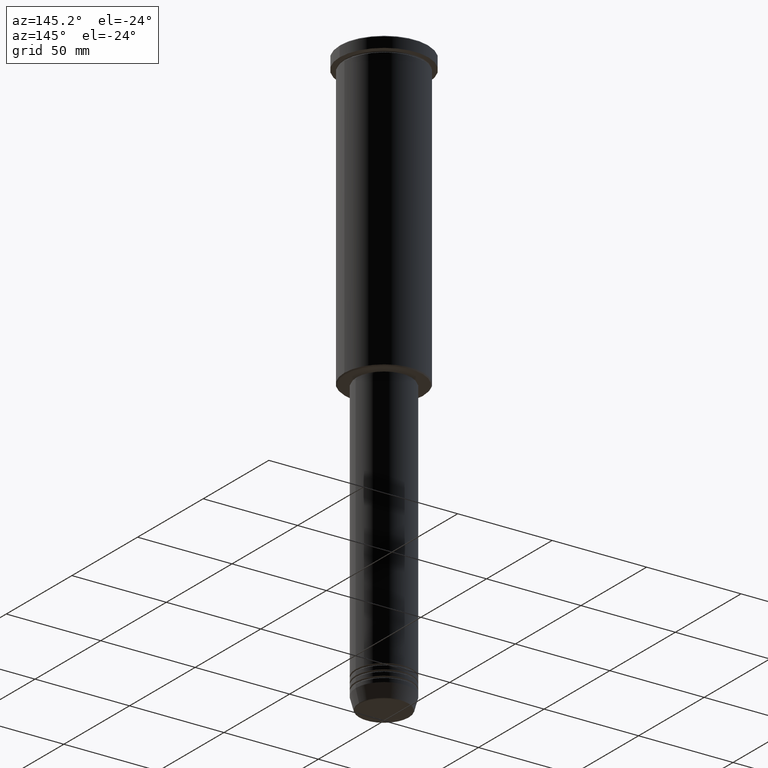
[diagram: clean part render]
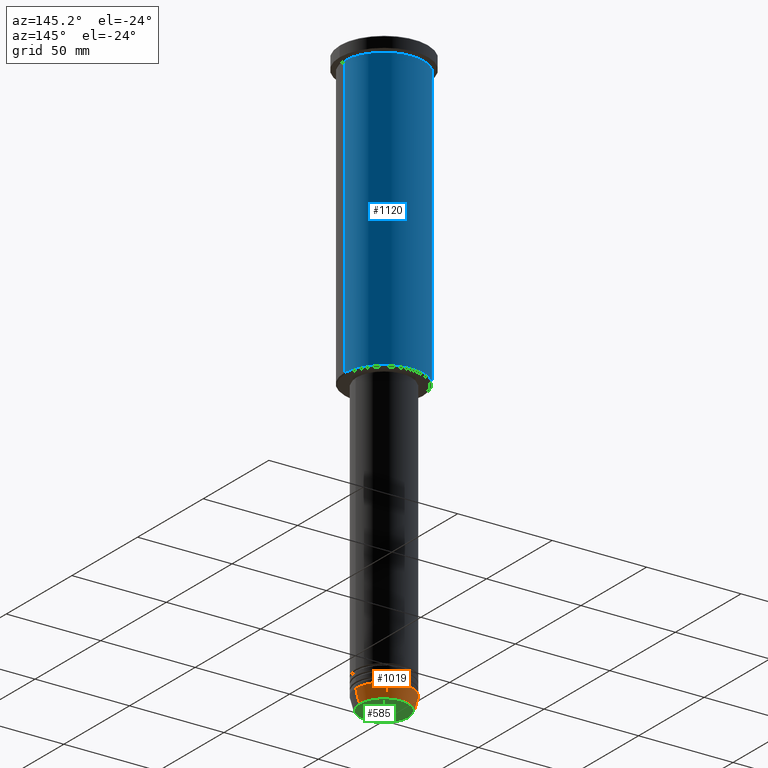
[diagram: same view with three faces highlighted in distinct colors, each labeled with its STEP entity id]
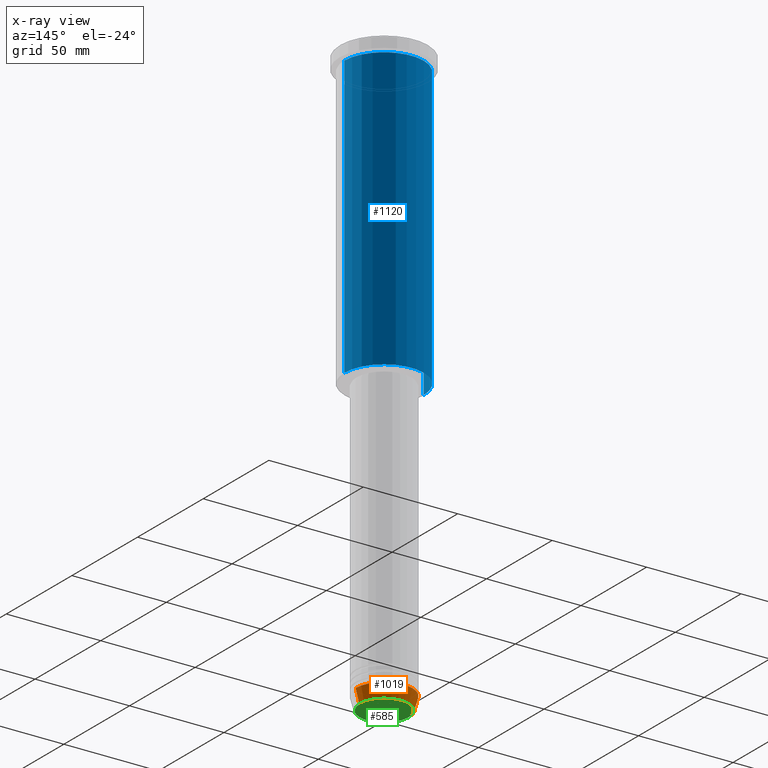
[diagram: x-ray of the same camera — body ghosted, the three highlighted faces saturated]
A machine part, auxiliary view with three faces highlighted in distinct colors.
The next image is the same camera in x-ray (body ghosted, the three faces saturated) — at least one of them is partly hidden behind the body in this view.
Their STEP definitions:

[orange] entity #1019 — the highlighted conical surface has half-angle 15 deg.
#1 = CARTESIAN_POINT ( 'NONE',  ( 15.00000000000000000, 0.000000000000000000, -304.0000000000000000 ) ) ;
#44 = CARTESIAN_POINT ( 'NONE',  ( -15.00000000000000000, 1.836970198721029589E-15, -304.0000000000000000 ) ) ;
#78 = CARTESIAN_POINT ( 'NONE',  ( 15.00000000000000000, 0.000000000000000000, -304.0000000000000000 ) ) ;
#81 = VERTEX_POINT ( 'NONE', #78 ) ;
#120 = CARTESIAN_POINT ( 'NONE',  ( 13.22365507213718772, 0.000000000000000000, -310.6294095225513274 ) ) ;
#149 = ORIENTED_EDGE ( 'NONE', *, *, #332, .T. ) ;
#182 = AXIS2_PLACEMENT_3D ( 'NONE', #543, #1004, #461 ) ;
#332 = EDGE_CURVE ( 'NONE', #344, #482, #380, .T. ) ;
#344 = VERTEX_POINT ( 'NONE', #120 ) ;
#380 = CIRCLE ( 'NONE', #1115, 13.22365507213718772 ) ;
#385 = ORIENTED_EDGE ( 'NONE', *, *, #703, .F. ) ;
#446 = DIRECTION ( 'NONE',  ( -0.000000000000000000, -0.000000000000000000, 1.000000000000000000 ) ) ;
#454 = VECTOR ( 'NONE', #803, 1000.000000000000000 ) ;
#461 = DIRECTION ( 'NONE',  ( 1.000000000000000000, 0.000000000000000000, 0.000000000000000000 ) ) ;
#462 = LINE ( 'NONE', #1, #454 ) ;
#467 = DIRECTION ( 'NONE',  ( 1.000000000000000000, 0.000000000000000000, 0.000000000000000000 ) ) ;
#482 = VERTEX_POINT ( 'NONE', #943 ) ;
#508 = VECTOR ( 'NONE', #964, 1000.000000000000000 ) ;
#542 = ORIENTED_EDGE ( 'NONE', *, *, #956, .F. ) ;
#543 = CARTESIAN_POINT ( 'NONE',  ( 0.000000000000000000, 0.000000000000000000, -304.0000000000000000 ) ) ;
#597 = EDGE_LOOP ( 'NONE', ( #149, #798, #542, #385 ) ) ;
#607 = AXIS2_PLACEMENT_3D ( 'NONE', #914, #446, #467 ) ;
#672 = DIRECTION ( 'NONE',  ( -0.000000000000000000, -0.000000000000000000, 1.000000000000000000 ) ) ;
#695 = CIRCLE ( 'NONE', #182, 15.00000000000000000 ) ;
#698 = LINE ( 'NONE', #44, #508 ) ;
#703 = EDGE_CURVE ( 'NONE', #344, #81, #462, .T. ) ;
#712 = VERTEX_POINT ( 'NONE', #1080 ) ;
#720 = FACE_OUTER_BOUND ( 'NONE', #597, .T. ) ;
#798 = ORIENTED_EDGE ( 'NONE', *, *, #832, .T. ) ;
#803 = DIRECTION ( 'NONE',  ( 0.2588190451025213501, 0.000000000000000000, 0.9659258262890680902 ) ) ;
#832 = EDGE_CURVE ( 'NONE', #482, #712, #698, .T. ) ;
#908 = CONICAL_SURFACE ( 'NONE', #607, 15.00000000000000000, 0.2617993877991500740 ) ;
#914 = CARTESIAN_POINT ( 'NONE',  ( 0.000000000000000000, 0.000000000000000000, -304.0000000000000000 ) ) ;
#925 = CARTESIAN_POINT ( 'NONE',  ( 0.000000000000000000, 0.000000000000000000, -310.6294095225513274 ) ) ;
#932 = DIRECTION ( 'NONE',  ( 1.000000000000000000, 0.000000000000000000, 0.000000000000000000 ) ) ;
#943 = CARTESIAN_POINT ( 'NONE',  ( -13.22365507213718772, 1.728200442216588386E-15, -310.6294095225513274 ) ) ;
#956 = EDGE_CURVE ( 'NONE', #81, #712, #695, .T. ) ;
#964 = DIRECTION ( 'NONE',  ( -0.2588190451025213501, 3.169619151431772337E-17, 0.9659258262890680902 ) ) ;
#1004 = DIRECTION ( 'NONE',  ( -0.000000000000000000, -0.000000000000000000, 1.000000000000000000 ) ) ;
#1019 = ADVANCED_FACE ( 'NONE', ( #720 ), #908, .T. ) ;
#1080 = CARTESIAN_POINT ( 'NONE',  ( -15.00000000000000000, 1.836970198721029589E-15, -304.0000000000000000 ) ) ;
#1115 = AXIS2_PLACEMENT_3D ( 'NONE', #925, #672, #932 ) ;

[blue] entity #1120 — the highlighted cylindrical surface (partial cylindrical patch) has radius 21 mm, axis along (-0, -0, 1).
#35 = CARTESIAN_POINT ( 'NONE',  ( 21.00000000000000000, 0.000000000000000000, 0.000000000000000000 ) ) ;
#40 = VECTOR ( 'NONE', #319, 1000.000000000000000 ) ;
#45 = EDGE_LOOP ( 'NONE', ( #127, #1060, #1051, #872 ) ) ;
#59 = CARTESIAN_POINT ( 'NONE',  ( -21.00000000000000000, 2.571758278209441661E-15, -6.999999999999994671 ) ) ;
#62 = CIRCLE ( 'NONE', #693, 21.00000000000000000 ) ;
#73 = VERTEX_POINT ( 'NONE', #710 ) ;
#80 = DIRECTION ( 'NONE',  ( -1.000000000000000000, 0.000000000000000000, 0.000000000000000000 ) ) ;
#113 = CARTESIAN_POINT ( 'NONE',  ( -21.00000000000000000, 2.571758278209441661E-15, 0.000000000000000000 ) ) ;
#116 = FACE_OUTER_BOUND ( 'NONE', #45, .T. ) ;
#118 = DIRECTION ( 'NONE',  ( 1.000000000000000000, 0.000000000000000000, 0.000000000000000000 ) ) ;
#127 = ORIENTED_EDGE ( 'NONE', *, *, #663, .T. ) ;
#140 = VERTEX_POINT ( 'NONE', #797 ) ;
#163 = AXIS2_PLACEMENT_3D ( 'NONE', #849, #303, #118 ) ;
#170 = DIRECTION ( 'NONE',  ( -0.000000000000000000, -0.000000000000000000, 1.000000000000000000 ) ) ;
#178 = VERTEX_POINT ( 'NONE', #59 ) ;
#303 = DIRECTION ( 'NONE',  ( -0.000000000000000000, -0.000000000000000000, 1.000000000000000000 ) ) ;
#307 = CYLINDRICAL_SURFACE ( 'NONE', #163, 21.00000000000000000 ) ;
#319 = DIRECTION ( 'NONE',  ( -0.000000000000000000, -0.000000000000000000, 1.000000000000000000 ) ) ;
#337 = VECTOR ( 'NONE', #483, 1000.000000000000000 ) ;
#382 = CIRCLE ( 'NONE', #576, 21.00000000000000000 ) ;
#390 = EDGE_CURVE ( 'NONE', #1057, #140, #1036, .T. ) ;
#483 = DIRECTION ( 'NONE',  ( -0.000000000000000000, -0.000000000000000000, 1.000000000000000000 ) ) ;
#484 = EDGE_CURVE ( 'NONE', #140, #178, #62, .T. ) ;
#519 = CARTESIAN_POINT ( 'NONE',  ( 0.000000000000000000, 0.000000000000000000, -6.999999999999994671 ) ) ;
#576 = AXIS2_PLACEMENT_3D ( 'NONE', #890, #170, #80 ) ;
#581 = CARTESIAN_POINT ( 'NONE',  ( 21.00000000000000000, 0.000000000000000000, -155.5000000000000000 ) ) ;
#663 = EDGE_CURVE ( 'NONE', #1057, #73, #382, .T. ) ;
#676 = LINE ( 'NONE', #113, #337 ) ;
#692 = DIRECTION ( 'NONE',  ( 1.000000000000000000, 0.000000000000000000, 0.000000000000000000 ) ) ;
#693 = AXIS2_PLACEMENT_3D ( 'NONE', #519, #780, #692 ) ;
#710 = CARTESIAN_POINT ( 'NONE',  ( -21.00000000000000000, 2.571758278209441661E-15, -155.5000000000000000 ) ) ;
#780 = DIRECTION ( 'NONE',  ( -0.000000000000000000, -0.000000000000000000, 1.000000000000000000 ) ) ;
#797 = CARTESIAN_POINT ( 'NONE',  ( 21.00000000000000000, 0.000000000000000000, -6.999999999999994671 ) ) ;
#849 = CARTESIAN_POINT ( 'NONE',  ( 0.000000000000000000, 0.000000000000000000, 0.000000000000000000 ) ) ;
#872 = ORIENTED_EDGE ( 'NONE', *, *, #390, .F. ) ;
#890 = CARTESIAN_POINT ( 'NONE',  ( 0.000000000000000000, 0.000000000000000000, -155.5000000000000000 ) ) ;
#1036 = LINE ( 'NONE', #35, #40 ) ;
#1051 = ORIENTED_EDGE ( 'NONE', *, *, #484, .F. ) ;
#1057 = VERTEX_POINT ( 'NONE', #581 ) ;
#1060 = ORIENTED_EDGE ( 'NONE', *, *, #1135, .T. ) ;
#1120 = ADVANCED_FACE ( 'NONE', ( #116 ), #307, .T. ) ;
#1135 = EDGE_CURVE ( 'NONE', #73, #178, #676, .T. ) ;

[green] entity #585 — the highlighted planar face has unit normal (0, -0, 1).
#75 = CARTESIAN_POINT ( 'NONE',  ( 0.000000000000000000, 0.000000000000000000, -311.0000000000000000 ) ) ;
#111 = EDGE_LOOP ( 'NONE', ( #775, #868 ) ) ;
#255 = CARTESIAN_POINT ( 'NONE',  ( 0.000000000000000000, 0.000000000000000000, -311.0000000000000000 ) ) ;
#259 = AXIS2_PLACEMENT_3D ( 'NONE', #255, #648, #904 ) ;
#375 = CARTESIAN_POINT ( 'NONE',  ( 12.74069215899265828, 0.000000000000000000, -311.0000000000000000 ) ) ;
#510 = VERTEX_POINT ( 'NONE', #537 ) ;
#537 = CARTESIAN_POINT ( 'NONE',  ( -12.74069215899265828, 1.589857736427680246E-15, -311.0000000000000000 ) ) ;
#562 = FACE_OUTER_BOUND ( 'NONE', #111, .T. ) ;
#585 = ADVANCED_FACE ( 'NONE', ( #562 ), #911, .F. ) ;
#643 = DIRECTION ( 'NONE',  ( 0.000000000000000000, 0.000000000000000000, -1.000000000000000000 ) ) ;
#645 = EDGE_CURVE ( 'NONE', #510, #705, #1128, .T. ) ;
#648 = DIRECTION ( 'NONE',  ( 0.000000000000000000, 0.000000000000000000, -1.000000000000000000 ) ) ;
#658 = EDGE_CURVE ( 'NONE', #705, #510, #811, .T. ) ;
#705 = VERTEX_POINT ( 'NONE', #375 ) ;
#733 = DIRECTION ( 'NONE',  ( 1.000000000000000000, 0.000000000000000000, 0.000000000000000000 ) ) ;
#768 = AXIS2_PLACEMENT_3D ( 'NONE', #821, #643, #796 ) ;
#775 = ORIENTED_EDGE ( 'NONE', *, *, #658, .T. ) ;
#796 = DIRECTION ( 'NONE',  ( 1.000000000000000000, 0.000000000000000000, 0.000000000000000000 ) ) ;
#811 = CIRCLE ( 'NONE', #259, 12.74069215899265828 ) ;
#821 = CARTESIAN_POINT ( 'NONE',  ( 0.000000000000000000, 0.000000000000000000, -311.0000000000000000 ) ) ;
#868 = ORIENTED_EDGE ( 'NONE', *, *, #645, .T. ) ;
#882 = AXIS2_PLACEMENT_3D ( 'NONE', #75, #1178, #733 ) ;
#904 = DIRECTION ( 'NONE',  ( 1.000000000000000000, 0.000000000000000000, 0.000000000000000000 ) ) ;
#911 = PLANE ( 'NONE',  #882 ) ;
#1128 = CIRCLE ( 'NONE', #768, 12.74069215899265828 ) ;
#1178 = DIRECTION ( 'NONE',  ( 0.000000000000000000, -0.000000000000000000, 1.000000000000000000 ) ) ;